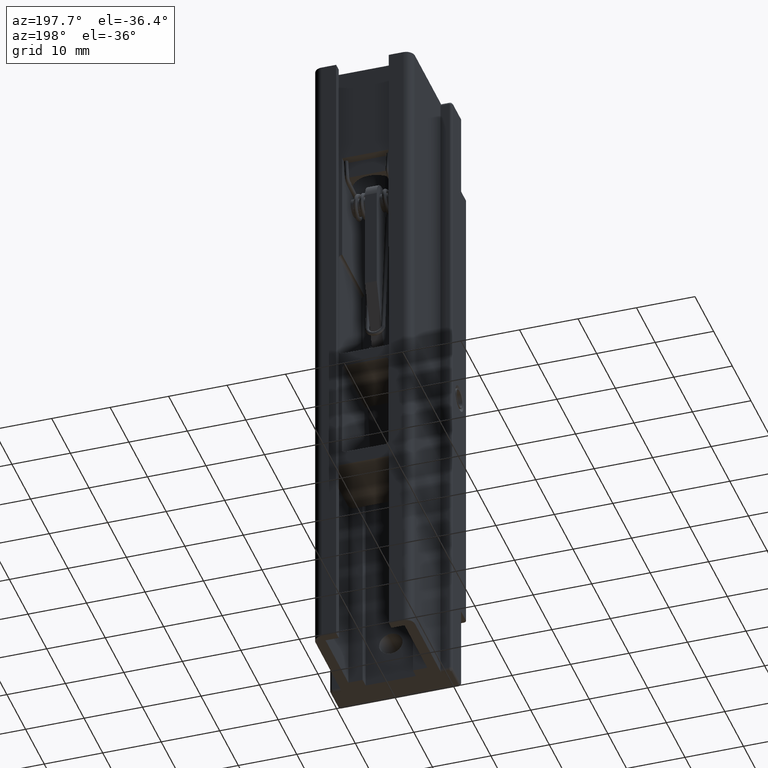
[diagram: clean part render]
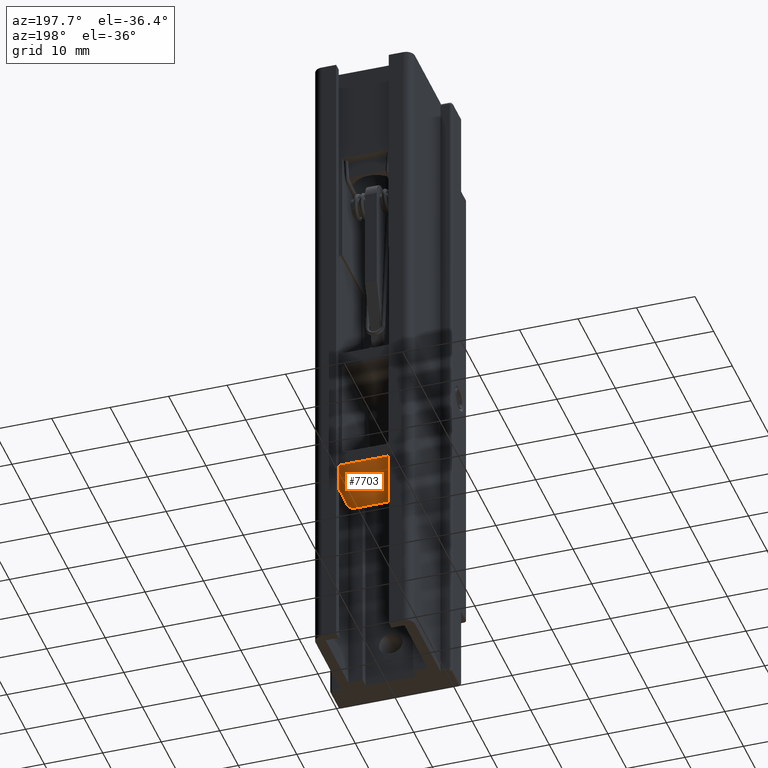
[diagram: same view with one face highlighted and labeled with its STEP entity id]
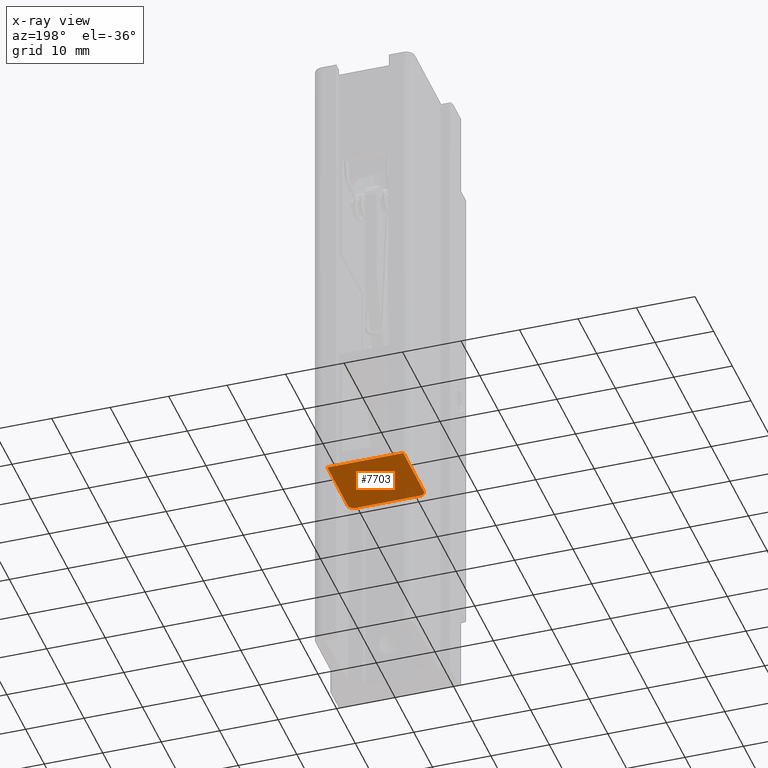
[diagram: x-ray of the same camera — body ghosted, the highlighted face saturated]
A machine part, auxiliary view. The second image highlights one B-rep face of the part: STEP entity #7703.
The next image is the same camera in x-ray: the body ghosted, the highlighted face saturated — about 9% of this face is hidden behind the body in this view.
In plain terms, the highlighted face is a freeform B-spline surface patch.
Its self-contained STEP definition (entity closure, byte-faithful):
#7638=CARTESIAN_POINT('',(-7.149349974803478,6.599399976741680,-22.500000000000000));
#7639=CARTESIAN_POINT('',(7.149350323490650,6.599399976741680,-22.500000000000000));
#7640=CARTESIAN_POINT('',(-7.149349974803478,-6.599400298606933,-22.500000000000000));
#7641=CARTESIAN_POINT('',(7.149350323490650,-6.599400298606933,-22.500000000000000));
#7642=B_SPLINE_SURFACE_WITH_KNOTS('',1,1,((#7638,#7640),(#7639,#7641)),.UNSPECIFIED.,.F.,.F.,.U.,(2,2),(2,2),(0.0,14.298700298294129),(0.0,13.198800275348610),.UNSPECIFIED.);
#7643=CARTESIAN_POINT('',(6.499999999999900,6.0,-22.500000000000000));
#7644=VERTEX_POINT('',#7643);
#7645=CARTESIAN_POINT('',(-6.500000000000000,6.0,-22.500000000000000));
#7646=VERTEX_POINT('',#7645);
#7647=CARTESIAN_POINT('',(6.499999999999900,6.0,-22.500000000000000));
#7648=CARTESIAN_POINT('',(-6.500000000000000,6.0,-22.500000000000000));
#7649=QUASI_UNIFORM_CURVE('',1,(#7647,#7648),.UNSPECIFIED.,.F.,.U.);
#7650=EDGE_CURVE('',#7644,#7646,#7649,.T.);
#7651=ORIENTED_EDGE('',*,*,#7650,.F.);
#7652=CARTESIAN_POINT('',(6.500000000000000,-5.000000000000171,-22.500000000000000));
#7653=VERTEX_POINT('',#7652);
#7654=CARTESIAN_POINT('',(6.500000000000000,-5.000000000000171,-22.500000000000000));
#7655=CARTESIAN_POINT('',(6.499999999999900,6.0,-22.500000000000000));
#7656=QUASI_UNIFORM_CURVE('',1,(#7654,#7655),.UNSPECIFIED.,.F.,.U.);
#7657=EDGE_CURVE('',#7653,#7644,#7656,.T.);
#7658=ORIENTED_EDGE('',*,*,#7657,.F.);
#7659=CARTESIAN_POINT('',(5.500000000000000,-6.000000000000171,-22.500000000000000));
#7660=VERTEX_POINT('',#7659);
#7661=CARTESIAN_POINT('',(5.500000000000000,-6.000000000000171,-22.500000000000000));
#7662=CARTESIAN_POINT('',(6.500000000000001,-6.000000000000170,-22.500000000000000));
#7663=CARTESIAN_POINT('',(6.500000000000000,-5.000000000000171,-22.500000000000000));
#7671=(BOUNDED_CURVE()B_SPLINE_CURVE(2,(#7661,#7662,#7663),.UNSPECIFIED.,.F.,.U.)CURVE()GEOMETRIC_REPRESENTATION_ITEM()QUASI_UNIFORM_CURVE()RATIONAL_B_SPLINE_CURVE((1.0,0.707106781186548,1.0))REPRESENTATION_ITEM(''));
#7672=EDGE_CURVE('',#7660,#7653,#7671,.T.);
#7673=ORIENTED_EDGE('',*,*,#7672,.F.);
#7674=CARTESIAN_POINT('',(-5.500000000000000,-6.000000000000171,-22.500000000000000));
#7675=VERTEX_POINT('',#7674);
#7676=CARTESIAN_POINT('',(-5.500000000000000,-6.000000000000171,-22.500000000000000));
#7677=CARTESIAN_POINT('',(5.500000000000000,-6.000000000000171,-22.500000000000000));
#7678=QUASI_UNIFORM_CURVE('',1,(#7676,#7677),.UNSPECIFIED.,.F.,.U.);
#7679=EDGE_CURVE('',#7675,#7660,#7678,.T.);
#7680=ORIENTED_EDGE('',*,*,#7679,.F.);
#7681=CARTESIAN_POINT('',(-6.500000000000000,-5.000000000000171,-22.500000000000000));
#7682=VERTEX_POINT('',#7681);
#7683=CARTESIAN_POINT('',(-6.500000000000000,-5.000000000000171,-22.500000000000000));
#7684=CARTESIAN_POINT('',(-6.500000000000001,-6.000000000000170,-22.500000000000000));
#7685=CARTESIAN_POINT('',(-5.500000000000000,-6.000000000000171,-22.500000000000000));
#7693=(BOUNDED_CURVE()B_SPLINE_CURVE(2,(#7683,#7684,#7685),.UNSPECIFIED.,.F.,.U.)CURVE()GEOMETRIC_REPRESENTATION_ITEM()QUASI_UNIFORM_CURVE()RATIONAL_B_SPLINE_CURVE((1.0,0.707106781186548,1.0))REPRESENTATION_ITEM(''));
#7694=EDGE_CURVE('',#7682,#7675,#7693,.T.);
#7695=ORIENTED_EDGE('',*,*,#7694,.F.);
#7696=CARTESIAN_POINT('',(-6.500000000000000,6.0,-22.500000000000000));
#7697=CARTESIAN_POINT('',(-6.500000000000000,-5.000000000000171,-22.500000000000000));
#7698=QUASI_UNIFORM_CURVE('',1,(#7696,#7697),.UNSPECIFIED.,.F.,.U.);
#7699=EDGE_CURVE('',#7646,#7682,#7698,.T.);
#7700=ORIENTED_EDGE('',*,*,#7699,.F.);
#7701=EDGE_LOOP('',(#7651,#7658,#7673,#7680,#7695,#7700));
#7702=FACE_OUTER_BOUND('',#7701,.T.);
#7703=ADVANCED_FACE('',(#7702),#7642,.T.);